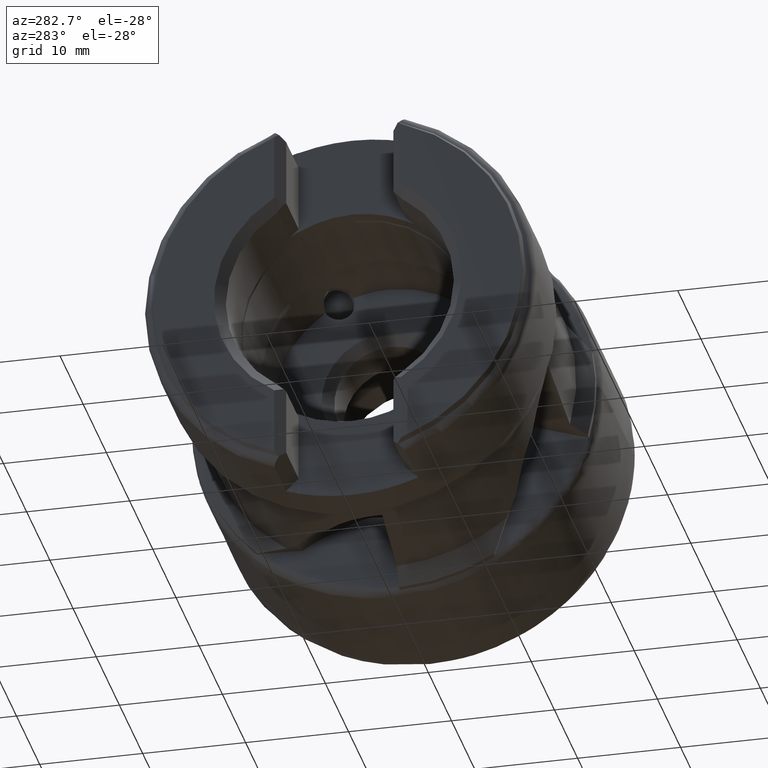
[diagram: clean part render]
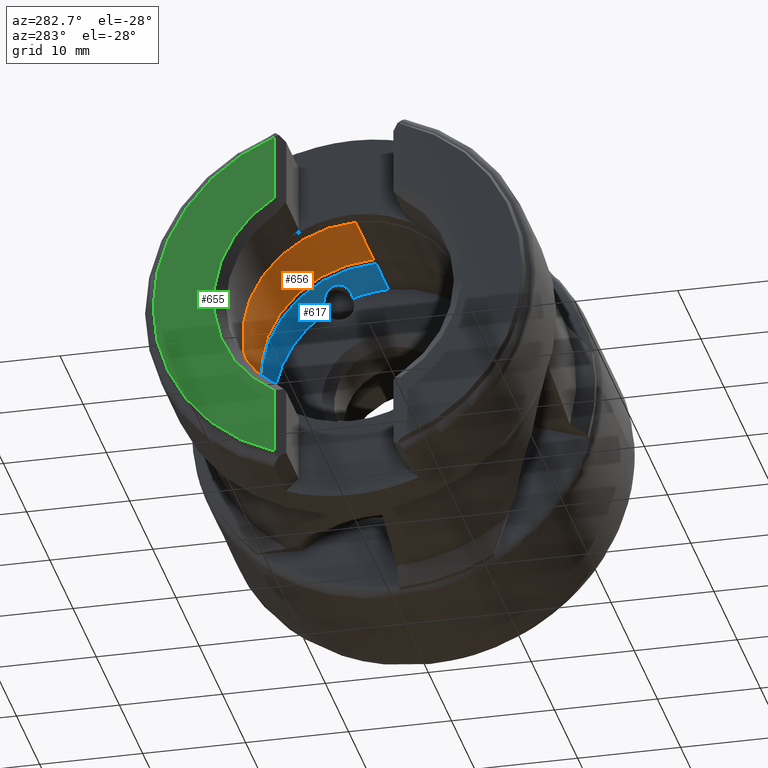
[diagram: same view with three faces highlighted in distinct colors, each labeled with its STEP entity id]
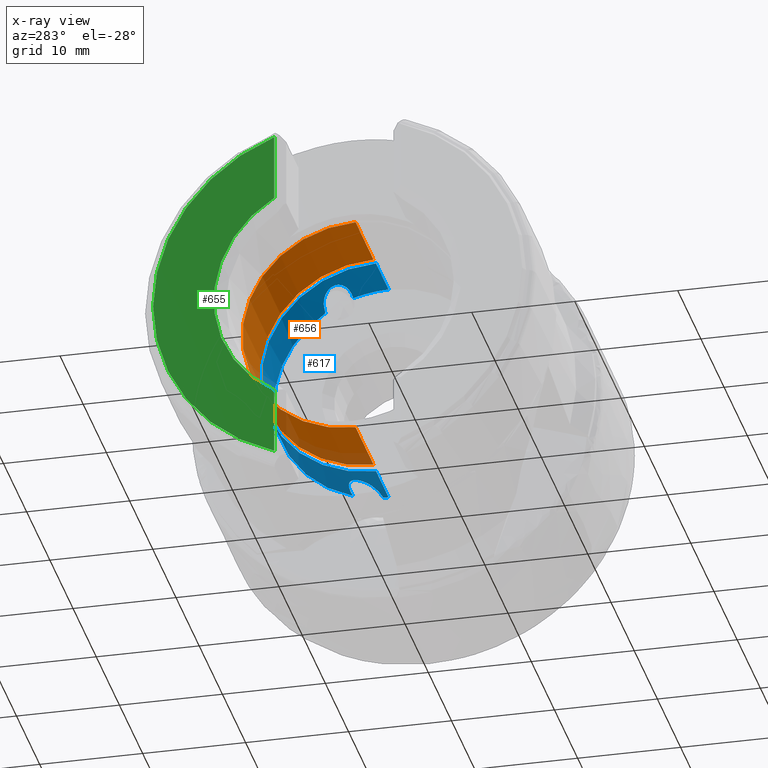
[diagram: x-ray of the same camera — body ghosted, the three highlighted faces saturated]
A machine part, auxiliary view with three faces highlighted in distinct colors.
The next image is the same camera in x-ray (body ghosted, the three faces saturated) — at least one of them is partly hidden behind the body in this view.
Their STEP definitions:

[orange] entity #656 — the highlighted cylindrical surface (partial cylindrical patch) has radius 11 mm, axis along (-1, -0, -0).
#65 = VERTEX_POINT ( 'NONE', #5427 ) ;
#77 = VERTEX_POINT ( 'NONE', #5392 ) ;
#79 = VERTEX_POINT ( 'NONE', #5356 ) ;
#80 = VERTEX_POINT ( 'NONE', #5359 ) ;
#656 = ADVANCED_FACE ( 'NONE', ( #1505 ), #1512, .F. ) ;
#670 = EDGE_CURVE ( 'NONE', #80, #79, #1528, .T. ) ;
#671 = EDGE_CURVE ( 'NONE', #77, #65, #1524, .T. ) ;
#797 = AXIS2_PLACEMENT_3D ( 'NONE', #6711, #6676, #6723 ) ;
#804 = AXIS2_PLACEMENT_3D ( 'NONE', #6736, #6628, #6631 ) ;
#805 = AXIS2_PLACEMENT_3D ( 'NONE', #6589, #6643, #6718 ) ;
#1286 = ORIENTED_EDGE ( 'NONE', *, *, #1650, .T. ) ;
#1290 = ORIENTED_EDGE ( 'NONE', *, *, #1651, .F. ) ;
#1293 = ORIENTED_EDGE ( 'NONE', *, *, #671, .F. ) ;
#1321 = ORIENTED_EDGE ( 'NONE', *, *, #670, .F. ) ;
#1505 = FACE_OUTER_BOUND ( 'NONE', #6064, .T. ) ;
#1512 = CYLINDRICAL_SURFACE ( 'NONE', #797, 11.00000000000000000 ) ;
#1524 = CIRCLE ( 'NONE', #805, 11.00000000000000000 ) ;
#1528 = CIRCLE ( 'NONE', #804, 11.00000000000000000 ) ;
#1650 = EDGE_CURVE ( 'NONE', #77, #79, #1737, .T. ) ;
#1651 = EDGE_CURVE ( 'NONE', #65, #80, #1742, .T. ) ;
#1737 = LINE ( 'NONE', #2761, #1743 ) ;
#1742 = LINE ( 'NONE', #2762, #1744 ) ;
#1743 = VECTOR ( 'NONE', #2779, 1000.000000000000000 ) ;
#1744 = VECTOR ( 'NONE', #2780, 1000.000000000000000 ) ;
#2761 = CARTESIAN_POINT ( 'NONE',  ( -22.15000000000000200, 0.0000000000000000000, 11.00000000000000000 ) ) ;
#2762 = CARTESIAN_POINT ( 'NONE',  ( -22.15000000000000200, 1.347111479062088400E-015, -11.00000000000000000 ) ) ;
#2779 = DIRECTION ( 'NONE',  ( -1.000000000000000000, -0.0000000000000000000, -0.0000000000000000000 ) ) ;
#2780 = DIRECTION ( 'NONE',  ( -1.000000000000000000, -0.0000000000000000000, -0.0000000000000000000 ) ) ;
#5356 = CARTESIAN_POINT ( 'NONE',  ( -31.35000000000000100, 0.0000000000000000000, 11.00000000000000000 ) ) ;
#5359 = CARTESIAN_POINT ( 'NONE',  ( -31.35000000000000100, 1.351703904558891000E-015, -11.00000000000000000 ) ) ;
#5392 = CARTESIAN_POINT ( 'NONE',  ( -23.61634727082116600, 1.356296330055693600E-015, 11.00000000000000000 ) ) ;
#5427 = CARTESIAN_POINT ( 'NONE',  ( -23.61634727082116600, 0.0000000000000000000, -11.00000000000000000 ) ) ;
#6064 = EDGE_LOOP ( 'NONE', ( #1290, #1293, #1286, #1321 ) ) ;
#6589 = CARTESIAN_POINT ( 'NONE',  ( -23.61634727082116600, 0.0000000000000000000, 0.0000000000000000000 ) ) ;
#6628 = DIRECTION ( 'NONE',  ( 1.000000000000000000, -0.0000000000000000000, -0.0000000000000000000 ) ) ;
#6631 = DIRECTION ( 'NONE',  ( 0.0000000000000000000, 0.0000000000000000000, 1.000000000000000000 ) ) ;
#6643 = DIRECTION ( 'NONE',  ( -1.000000000000000000, 0.0000000000000000000, 0.0000000000000000000 ) ) ;
#6676 = DIRECTION ( 'NONE',  ( -1.000000000000000000, -0.0000000000000000000, -0.0000000000000000000 ) ) ;
#6711 = CARTESIAN_POINT ( 'NONE',  ( -22.15000000000000200, 0.0000000000000000000, 0.0000000000000000000 ) ) ;
#6718 = DIRECTION ( 'NONE',  ( 0.0000000000000000000, 0.0000000000000000000, -1.000000000000000000 ) ) ;
#6723 = DIRECTION ( 'NONE',  ( 0.0000000000000000000, 0.0000000000000000000, 1.000000000000000000 ) ) ;
#6736 = CARTESIAN_POINT ( 'NONE',  ( -31.35000000000000100, 0.0000000000000000000, 0.0000000000000000000 ) ) ;

[blue] entity #617 — the highlighted cylindrical surface (partial cylindrical patch) has radius 11.15 mm, axis along (1, -0, -0).
#83 = VERTEX_POINT ( 'NONE', #5352 ) ;
#91 = VERTEX_POINT ( 'NONE', #5358 ) ;
#92 = VERTEX_POINT ( 'NONE', #5398 ) ;
#96 = VERTEX_POINT ( 'NONE', #5340 ) ;
#97 = VERTEX_POINT ( 'NONE', #5365 ) ;
#101 = VERTEX_POINT ( 'NONE', #5343 ) ;
#112 = VERTEX_POINT ( 'NONE', #5381 ) ;
#118 = VERTEX_POINT ( 'NONE', #5411 ) ;
#121 = VERTEX_POINT ( 'NONE', #5333 ) ;
#123 = VERTEX_POINT ( 'NONE', #5399 ) ;
#255 = VERTEX_POINT ( 'NONE', #5795 ) ;
#257 = VERTEX_POINT ( 'NONE', #5863 ) ;
#261 = VERTEX_POINT ( 'NONE', #5791 ) ;
#381 = ORIENTED_EDGE ( 'NONE', *, *, #679, .T. ) ;
#395 = ORIENTED_EDGE ( 'NONE', *, *, #1661, .T. ) ;
#396 = ORIENTED_EDGE ( 'NONE', *, *, #678, .T. ) ;
#397 = ORIENTED_EDGE ( 'NONE', *, *, #677, .T. ) ;
#398 = ORIENTED_EDGE ( 'NONE', *, *, #676, .T. ) ;
#399 = ORIENTED_EDGE ( 'NONE', *, *, #1676, .T. ) ;
#400 = ORIENTED_EDGE ( 'NONE', *, *, #675, .T. ) ;
#401 = ORIENTED_EDGE ( 'NONE', *, *, #674, .T. ) ;
#402 = ORIENTED_EDGE ( 'NONE', *, *, #1635, .T. ) ;
#403 = ORIENTED_EDGE ( 'NONE', *, *, #673, .T. ) ;
#404 = ORIENTED_EDGE ( 'NONE', *, *, #6135, .T. ) ;
#405 = ORIENTED_EDGE ( 'NONE', *, *, #672, .F. ) ;
#406 = ORIENTED_EDGE ( 'NONE', *, *, #6143, .F. ) ;
#617 = ADVANCED_FACE ( 'NONE', ( #1457 ), #1456, .F. ) ;
#672 = EDGE_CURVE ( 'NONE', #118, #112, #1529, .T. ) ;
#673 = EDGE_CURVE ( 'NONE', #123, #101, #1530, .T. ) ;
#674 = EDGE_CURVE ( 'NONE', #97, #255, #5955, .T. ) ;
#675 = EDGE_CURVE ( 'NONE', #255, #96, #1531, .T. ) ;
#676 = EDGE_CURVE ( 'NONE', #92, #257, #5960, .T. ) ;
#677 = EDGE_CURVE ( 'NONE', #257, #261, #1532, .T. ) ;
#678 = EDGE_CURVE ( 'NONE', #261, #83, #5962, .T. ) ;
#679 = EDGE_CURVE ( 'NONE', #91, #121, #1533, .T. ) ;
#754 = AXIS2_PLACEMENT_3D ( 'NONE', #6332, #6352, #6326 ) ;
#806 = AXIS2_PLACEMENT_3D ( 'NONE', #6588, #6737, #6591 ) ;
#807 = AXIS2_PLACEMENT_3D ( 'NONE', #6606, #6603, #6759 ) ;
#808 = AXIS2_PLACEMENT_3D ( 'NONE', #6645, #6741, #6630 ) ;
#809 = AXIS2_PLACEMENT_3D ( 'NONE', #6681, #6674, #6687 ) ;
#810 = AXIS2_PLACEMENT_3D ( 'NONE', #6700, #6693, #6667 ) ;
#1456 = CYLINDRICAL_SURFACE ( 'NONE', #754, 11.14999999999999900 ) ;
#1457 = FACE_OUTER_BOUND ( 'NONE', #6098, .T. ) ;
#1529 = CIRCLE ( 'NONE', #806, 11.14999999999999900 ) ;
#1530 = CIRCLE ( 'NONE', #807, 11.14999999999999900 ) ;
#1531 = CIRCLE ( 'NONE', #808, 11.14999999999999900 ) ;
#1532 = CIRCLE ( 'NONE', #809, 11.14999999999999900 ) ;
#1533 = CIRCLE ( 'NONE', #810, 11.14999999999999900 ) ;
#1635 = EDGE_CURVE ( 'NONE', #101, #97, #5683, .T. ) ;
#1661 = EDGE_CURVE ( 'NONE', #83, #91, #6190, .T. ) ;
#1676 = EDGE_CURVE ( 'NONE', #96, #92, #5967, .T. ) ;
#2052 = LINE ( 'NONE', #4880, #2056 ) ;
#2056 = VECTOR ( 'NONE', #4881, 1000.000000000000000 ) ;
#2062 = LINE ( 'NONE', #4909, #2064 ) ;
#2064 = VECTOR ( 'NONE', #4908, 1000.000000000000000 ) ;
#2667 = CARTESIAN_POINT ( 'NONE',  ( -17.48555824238443900, 0.5201912534317708600, -11.13786835752697300 ) ) ;
#2668 = CARTESIAN_POINT ( 'NONE',  ( -17.14999999999999900, 0.5056979179938314600, -11.13852636643300000 ) ) ;
#2683 = CARTESIAN_POINT ( 'NONE',  ( -17.81745045611878800, 0.5543105602505674600, -11.13635259256527400 ) ) ;
#2684 = CARTESIAN_POINT ( 'NONE',  ( -18.47316713826245000, 0.6656650827218929500, -11.13025153627650400 ) ) ;
#2685 = CARTESIAN_POINT ( 'NONE',  ( -18.79706457708927700, 0.7425147830143330500, -11.12576467504484900 ) ) ;
#2686 = CARTESIAN_POINT ( 'NONE',  ( -19.43362354065945400, 0.9560682739943035000, -11.10945098836716800 ) ) ;
#2687 = CARTESIAN_POINT ( 'NONE',  ( -19.74289624833423300, 1.090498603435603700, -11.09804363385641100 ) ) ;
#2688 = CARTESIAN_POINT ( 'NONE',  ( -20.16560171350078400, 1.362272214463939400, -11.06684369364040600 ) ) ;
#2689 = CARTESIAN_POINT ( 'NONE',  ( -20.30079386133898800, 1.465858368514648500, -11.05388713382799200 ) ) ;
#2690 = CARTESIAN_POINT ( 'NONE',  ( -20.53673609780716400, 1.705566419353249600, -11.01944666093207700 ) ) ;
#2691 = CARTESIAN_POINT ( 'NONE',  ( -20.63819050787660500, 1.841393094812096000, -10.99804825308224700 ) ) ;
#2692 = CARTESIAN_POINT ( 'NONE',  ( -20.69930237472874200, 1.997859805780366300, -10.96955132156494500 ) ) ;
#2846 = CARTESIAN_POINT ( 'NONE',  ( -20.50634299675489900, 4.056619334168007500, 10.38587211444731100 ) ) ;
#2847 = CARTESIAN_POINT ( 'NONE',  ( -20.40445638768442600, 3.958212328905331000, 10.42430892127173300 ) ) ;
#2853 = CARTESIAN_POINT ( 'NONE',  ( -20.28227467673757500, 3.876658423463029000, 10.45462621863004300 ) ) ;
#2854 = CARTESIAN_POINT ( 'NONE',  ( -20.02749020733261900, 3.741244165153859500, 10.50384605752463000 ) ) ;
#2855 = CARTESIAN_POINT ( 'NONE',  ( -19.89244363477693900, 3.685903388007149700, 10.52326233634157900 ) ) ;
#2856 = CARTESIAN_POINT ( 'NONE',  ( -19.47622709275359300, 3.546002716496279300, 10.57157039778632100 ) ) ;
#2857 = CARTESIAN_POINT ( 'NONE',  ( -19.19123640880378900, 3.488579201850137600, 10.59027426869906900 ) ) ;
#2858 = CARTESIAN_POINT ( 'NONE',  ( -18.61321953898776000, 3.412650868379312200, 10.61498506755430100 ) ) ;
#2859 = CARTESIAN_POINT ( 'NONE',  ( -18.31919460985600900, 3.395320143919960300, 10.62046635021584800 ) ) ;
#2860 = CARTESIAN_POINT ( 'NONE',  ( -17.73421588556301700, 3.391334924121733400, 10.62173958484240000 ) ) ;
#2861 = CARTESIAN_POINT ( 'NONE',  ( -17.44199258917797500, 3.404640998786513600, 10.61751839320738900 ) ) ;
#2862 = CARTESIAN_POINT ( 'NONE',  ( -17.14999999999999900, 3.431165824096864100, 10.60893967781712300 ) ) ;
#2958 = CARTESIAN_POINT ( 'NONE',  ( -17.52396771426383600, 10.70088802393178500, -3.132691643625694400 ) ) ;
#2959 = CARTESIAN_POINT ( 'NONE',  ( -17.14999999999999900, 10.69632272214158100, -3.148202697381646200 ) ) ;
#2964 = CARTESIAN_POINT ( 'NONE',  ( -17.89340565476623700, 10.71236701528235000, -3.093912424557710800 ) ) ;
#2965 = CARTESIAN_POINT ( 'NONE',  ( -18.62205476965025500, 10.74921681929663600, -2.963349276189381200 ) ) ;
#2966 = CARTESIAN_POINT ( 'NONE',  ( -18.98307043987621500, 10.77466863207056700, -2.871827497043699700 ) ) ;
#2967 = CARTESIAN_POINT ( 'NONE',  ( -19.50761971454356200, 10.82464617056332300, -2.674720472878271900 ) ) ;
#2968 = CARTESIAN_POINT ( 'NONE',  ( -19.67746992312545700, 10.84307765583210800, -2.599680077189070500 ) ) ;
#2969 = CARTESIAN_POINT ( 'NONE',  ( -20.00335591410426200, 10.88379765865245300, -2.423554843540935500 ) ) ;
#2970 = CARTESIAN_POINT ( 'NONE',  ( -20.16117405156308000, 10.90630633454316500, -2.321687080248946000 ) ) ;
#2971 = CARTESIAN_POINT ( 'NONE',  ( -20.44541228306318800, 10.95505014539853800, -2.079573291157300800 ) ) ;
#2972 = CARTESIAN_POINT ( 'NONE',  ( -20.57300356673777500, 10.98141327688740400, -1.938841361181976600 ) ) ;
#2973 = CARTESIAN_POINT ( 'NONE',  ( -20.70067934773160100, 11.02136777204429000, -1.690846911683828500 ) ) ;
#2974 = CARTESIAN_POINT ( 'NONE',  ( -20.73221155220406300, 11.03483288625898600, -1.601142365670063600 ) ) ;
#2975 = CARTESIAN_POINT ( 'NONE',  ( -20.76000584917084200, 11.06006639567990000, -1.416377430616071500 ) ) ;
#2976 = CARTESIAN_POINT ( 'NONE',  ( -20.75592486822018400, 11.07181833266838200, -1.321259069807207800 ) ) ;
#2977 = CARTESIAN_POINT ( 'NONE',  ( -20.73300731904784300, 11.08192273860083300, -1.230239170113669000 ) ) ;
#4880 = CARTESIAN_POINT ( 'NONE',  ( 0.0000000000000000000, 0.0000000000000000000, -11.14999999999999900 ) ) ;
#4881 = DIRECTION ( 'NONE',  ( 1.000000000000000000, -0.0000000000000000000, -0.0000000000000000000 ) ) ;
#4908 = DIRECTION ( 'NONE',  ( 1.000000000000000000, -0.0000000000000000000, -0.0000000000000000000 ) ) ;
#4909 = CARTESIAN_POINT ( 'NONE',  ( 0.0000000000000000000, 1.365481181049298600E-015, 11.14999999999999900 ) ) ;
#5333 = CARTESIAN_POINT ( 'NONE',  ( -17.14999999999999900, 1.365481181049298600E-015, 11.14999999999999900 ) ) ;
#5340 = CARTESIAN_POINT ( 'NONE',  ( -17.14999999999999900, 10.69632272214158100, -3.148202697381646200 ) ) ;
#5343 = CARTESIAN_POINT ( 'NONE',  ( -17.14999999999999900, 0.5056979179938314600, -11.13852636643300000 ) ) ;
#5352 = CARTESIAN_POINT ( 'NONE',  ( -20.50634299675489900, 4.056619334168007500, 10.38587211444731100 ) ) ;
#5358 = CARTESIAN_POINT ( 'NONE',  ( -17.14999999999999900, 3.431165824096864100, 10.60893967781712300 ) ) ;
#5365 = CARTESIAN_POINT ( 'NONE',  ( -20.69930237472874200, 1.997859805780366300, -10.96955132156494500 ) ) ;
#5381 = CARTESIAN_POINT ( 'NONE',  ( -22.54904181246354600, 1.365481181049298600E-015, 11.14999999999999900 ) ) ;
#5398 = CARTESIAN_POINT ( 'NONE',  ( -20.73300731904784300, 11.08192273860083300, -1.230239170113669000 ) ) ;
#5399 = CARTESIAN_POINT ( 'NONE',  ( -17.14999999999999900, 0.0000000000000000000, -11.14999999999999900 ) ) ;
#5411 = CARTESIAN_POINT ( 'NONE',  ( -22.54904181246354600, 0.0000000000000000000, -11.14999999999999900 ) ) ;
#5683 = B_SPLINE_CURVE_WITH_KNOTS ( 'NONE', 3,
 ( #2668, #2667, #2683, #2684, #2685, #2686, #2687, #2688, #2689, #2690, #2691, #2692 ),
 .UNSPECIFIED., .F., .F.,
 ( 4, 2, 2, 2, 2, 4 ),
 ( 1.789345665383675700E-015, 0.0009975691810379598100, 0.001995138362074130300, 0.002992707543110300900, 0.003491492133628381500, 0.003990276724146462500 ),
 .UNSPECIFIED. ) ;
#5791 = CARTESIAN_POINT ( 'NONE',  ( -17.14999999999999900, 6.137943320776376100, 9.308498901055395800 ) ) ;
#5795 = CARTESIAN_POINT ( 'NONE',  ( -17.14999999999999900, 3.459906822876593700, -10.59960116122292600 ) ) ;
#5863 = CARTESIAN_POINT ( 'NONE',  ( -17.14999999999999900, 11.14855527079869000, -0.1794864171743981700 ) ) ;
#5955 = B_SPLINE_CURVE_WITH_KNOTS ( 'NONE', 3,
 ( #6590, #6629, #6652, #6650, #6705, #6704, #6706, #6615, #6707, #6690, #6750, #6752, #6747, #6684, #6746, #6637, #6608, #6605 ),
 .UNSPECIFIED., .F., .F.,
 ( 4, 2, 2, 2, 2, 2, 2, 2, 4 ),
 ( 0.003990276724146462500, 0.004264322577571186300, 0.004538368430995910100, 0.004812414284420634700, 0.005086460137845358500, 0.005634551844694814800, 0.006182643551544271900, 0.007278826965243185300, 0.008375010378942098600 ),
 .UNSPECIFIED. ) ;
#5960 = B_SPLINE_CURVE_WITH_KNOTS ( 'NONE', 3,
 ( #6641, #6624, #6600, #6604, #6607, #6679, #6699, #6697, #6642, #6696, #6689, #6691, #6651, #6692 ),
 .UNSPECIFIED., .F., .F.,
 ( 4, 2, 2, 2, 2, 2, 4 ),
 ( 0.004447021343314512900, 0.004938019972768067600, 0.005429018602221622300, 0.005920017231675176900, 0.006411015861128731600, 0.007393013120035831500, 0.008375010378942931300 ),
 .UNSPECIFIED. ) ;
#5962 = B_SPLINE_CURVE_WITH_KNOTS ( 'NONE', 3,
 ( #6708, #6677, #6695, #6682, #6673, #6688, #6671, #6678, #6698, #6702, #6611, #6658, #6613, #6665, #6761, #6610, #6656, #6626, #6662, #6666 ),
 .UNSPECIFIED., .F., .F.,
 ( 4, 2, 2, 2, 2, 2, 2, 2, 2, 4 ),
 ( 8.152997335008075200E-016, 0.001223479012554246500, 0.001835218518830962100, 0.002446958025107678000, 0.003058697531384394400, 0.003670437037661109400, 0.003976306790799469100, 0.004282176543937829200, 0.004588046297076189300, 0.004893916050214549400 ),
 .UNSPECIFIED. ) ;
#5967 = B_SPLINE_CURVE_WITH_KNOTS ( 'NONE', 3,
 ( #2959, #2958, #2964, #2965, #2966, #2967, #2968, #2969, #2970, #2971, #2972, #2973, #2974, #2975, #2976, #2977 ),
 .UNSPECIFIED., .F., .F.,
 ( 4, 2, 2, 2, 2, 2, 2, 4 ),
 ( 5.541464110564796000E-016, 0.001111755335829047800, 0.002223510671657541400, 0.002779388339571783300, 0.003335266007486025200, 0.003891143675400267100, 0.004169082509357389800, 0.004447021343314512900 ),
 .UNSPECIFIED. ) ;
#6098 = EDGE_LOOP ( 'NONE', ( #406, #405, #404, #403, #402, #401, #400, #399, #398, #397, #396, #395, #381 ) ) ;
#6135 = EDGE_CURVE ( 'NONE', #118, #123, #2052, .T. ) ;
#6143 = EDGE_CURVE ( 'NONE', #112, #121, #2062, .T. ) ;
#6190 = B_SPLINE_CURVE_WITH_KNOTS ( 'NONE', 3,
 ( #2846, #2847, #2853, #2854, #2855, #2856, #2857, #2858, #2859, #2860, #2861, #2862 ),
 .UNSPECIFIED., .F., .F.,
 ( 4, 2, 2, 2, 2, 4 ),
 ( 0.004893916050214549400, 0.005329052841305966700, 0.005764189632397383900, 0.006634463214580207900, 0.007504736796763032900, 0.008375010378945857800 ),
 .UNSPECIFIED. ) ;
#6326 = DIRECTION ( 'NONE',  ( 0.0000000000000000000, 0.0000000000000000000, -1.000000000000000000 ) ) ;
#6332 = CARTESIAN_POINT ( 'NONE',  ( 0.0000000000000000000, 0.0000000000000000000, 0.0000000000000000000 ) ) ;
#6352 = DIRECTION ( 'NONE',  ( 1.000000000000000000, -0.0000000000000000000, -0.0000000000000000000 ) ) ;
#6588 = CARTESIAN_POINT ( 'NONE',  ( -22.54904181246354600, 0.0000000000000000000, 0.0000000000000000000 ) ) ;
#6590 = CARTESIAN_POINT ( 'NONE',  ( -20.69930237472874200, 1.997859805780366300, -10.96955132156494500 ) ) ;
#6591 = DIRECTION ( 'NONE',  ( 0.0000000000000000000, 0.0000000000000000000, -1.000000000000000000 ) ) ;
#6600 = CARTESIAN_POINT ( 'NONE',  ( -20.59415628188748900, 11.11207858767678400, -0.9259636947778793200 ) ) ;
#6603 = DIRECTION ( 'NONE',  ( 1.000000000000000000, -0.0000000000000000000, -0.0000000000000000000 ) ) ;
#6604 = CARTESIAN_POINT ( 'NONE',  ( -20.35536304150685900, 11.12879930709187800, -0.6967964446113281700 ) ) ;
#6605 = CARTESIAN_POINT ( 'NONE',  ( -17.14999999999999900, 3.459906822876593700, -10.59960116122292600 ) ) ;
#6606 = CARTESIAN_POINT ( 'NONE',  ( -17.14999999999999900, 0.0000000000000000000, 0.0000000000000000000 ) ) ;
#6607 = CARTESIAN_POINT ( 'NONE',  ( -20.21331929151875400, 11.13379096063385600, -0.6055929099219411500 ) ) ;
#6608 = CARTESIAN_POINT ( 'NONE',  ( -17.51778943970418800, 3.493287681420520500, -10.58870502857925900 ) ) ;
#6610 = CARTESIAN_POINT ( 'NONE',  ( -20.75322165389523800, 4.473194280128046400, 10.21390281541888900 ) ) ;
#6611 = CARTESIAN_POINT ( 'NONE',  ( -20.41222816434999400, 5.228356071250837000, 9.849551749296480800 ) ) ;
#6613 = CARTESIAN_POINT ( 'NONE',  ( -20.65503380074251200, 4.930872053790147400, 10.00092096198565800 ) ) ;
#6615 = CARTESIAN_POINT ( 'NONE',  ( -20.50223695880751500, 2.832436825341265500, -10.78447499546483700 ) ) ;
#6624 = CARTESIAN_POINT ( 'NONE',  ( -20.69252184577324600, 11.09977288711600900, -1.069446072703569700 ) ) ;
#6626 = CARTESIAN_POINT ( 'NONE',  ( -20.64072454436304200, 4.205073493279157600, 10.32708471799775700 ) ) ;
#6629 = CARTESIAN_POINT ( 'NONE',  ( -20.73287890059631200, 2.083826882861316700, -10.95389433041866100 ) ) ;
#6630 = DIRECTION ( 'NONE',  ( 0.0000000000000000000, 0.0000000000000000000, -1.000000000000000000 ) ) ;
#6637 = CARTESIAN_POINT ( 'NONE',  ( -17.88594029356586600, 3.505911236465785400, -10.58448268339776300 ) ) ;
#6641 = CARTESIAN_POINT ( 'NONE',  ( -20.73300731904784300, 11.08192273860083300, -1.230239170113669000 ) ) ;
#6642 = CARTESIAN_POINT ( 'NONE',  ( -19.28566828062580600, 11.14689980745103300, -0.2645459943947938700 ) ) ;
#6645 = CARTESIAN_POINT ( 'NONE',  ( -17.14999999999999900, 0.0000000000000000000, 0.0000000000000000000 ) ) ;
#6650 = CARTESIAN_POINT ( 'NONE',  ( -20.75563322015055000, 2.356615292515395100, -10.89851235622746400 ) ) ;
#6651 = CARTESIAN_POINT ( 'NONE',  ( -17.47947791138866000, 11.14906163922213800, -0.1480340295965119600 ) ) ;
#6652 = CARTESIAN_POINT ( 'NONE',  ( -20.75265519005015600, 2.173882377526140000, -10.93642732451697700 ) ) ;
#6656 = CARTESIAN_POINT ( 'NONE',  ( -20.72854004327383100, 4.378449834633437700, 10.25477932001368100 ) ) ;
#6658 = CARTESIAN_POINT ( 'NONE',  ( -20.60139005773509500, 5.009476738116432200, 9.961644544337751500 ) ) ;
#6662 = CARTESIAN_POINT ( 'NONE',  ( -20.57796192809446400, 4.125792355211068200, 10.35885381386803200 ) ) ;
#6665 = CARTESIAN_POINT ( 'NONE',  ( -20.73308376555941000, 4.756035864855987500, 10.08523882468513100 ) ) ;
#6666 = CARTESIAN_POINT ( 'NONE',  ( -20.50634299675489900, 4.056619334168007500, 10.38587211444731100 ) ) ;
#6667 = DIRECTION ( 'NONE',  ( 0.0000000000000000000, 0.0000000000000000000, -1.000000000000000000 ) ) ;
#6671 = CARTESIAN_POINT ( 'NONE',  ( -19.35341091555754300, 5.778262416387215200, 9.536308642010716600 ) ) ;
#6673 = CARTESIAN_POINT ( 'NONE',  ( -18.76556089893755800, 5.940237082483764500, 9.436082720685522700 ) ) ;
#6674 = DIRECTION ( 'NONE',  ( 1.000000000000000000, -0.0000000000000000000, -0.0000000000000000000 ) ) ;
#6677 = CARTESIAN_POINT ( 'NONE',  ( -17.56154886783930600, 6.123088283076944200, 9.318294183881334900 ) ) ;
#6678 = CARTESIAN_POINT ( 'NONE',  ( -19.72869678399895900, 5.634514661239530000, 9.621940739819489600 ) ) ;
#6679 = CARTESIAN_POINT ( 'NONE',  ( -19.91859892253988900, 11.14088572940224100, -0.4568469021907793400 ) ) ;
#6681 = CARTESIAN_POINT ( 'NONE',  ( -17.14999999999999900, 0.0000000000000000000, 0.0000000000000000000 ) ) ;
#6682 = CARTESIAN_POINT ( 'NONE',  ( -18.56728757469293400, 5.981670879352215300, 9.409768927238932400 ) ) ;
#6684 = CARTESIAN_POINT ( 'NONE',  ( -18.99096116796445000, 3.441990300509334000, -10.60575835321316700 ) ) ;
#6687 = DIRECTION ( 'NONE',  ( 0.0000000000000000000, 0.0000000000000000000, -1.000000000000000000 ) ) ;
#6688 = CARTESIAN_POINT ( 'NONE',  ( -19.15811514968829200, 5.838715763154312700, 9.499235334742921900 ) ) ;
#6689 = CARTESIAN_POINT ( 'NONE',  ( -18.46948423906107500, 11.14901289505235800, -0.1485357369674771800 ) ) ;
#6690 = CARTESIAN_POINT ( 'NONE',  ( -20.21219353420232400, 3.057826751954757500, -10.72311276590509400 ) ) ;
#6691 = CARTESIAN_POINT ( 'NONE',  ( -17.80924789564226500, 11.14919468979486600, -0.1341982423514893600 ) ) ;
#6692 = CARTESIAN_POINT ( 'NONE',  ( -17.14999999999999900, 11.14855527079869000, -0.1794864171743981700 ) ) ;
#6693 = DIRECTION ( 'NONE',  ( 1.000000000000000000, -0.0000000000000000000, -0.0000000000000000000 ) ) ;
#6695 = CARTESIAN_POINT ( 'NONE',  ( -17.96764396112820000, 6.083892622457212500, 9.344265709519257600 ) ) ;
#6696 = CARTESIAN_POINT ( 'NONE',  ( -18.80050646707164200, 11.14875573216575000, -0.1765933931663134500 ) ) ;
#6697 = CARTESIAN_POINT ( 'NONE',  ( -19.44587081984359100, 11.14602385596275300, -0.3015931883750202500 ) ) ;
#6698 = CARTESIAN_POINT ( 'NONE',  ( -19.90972707857514800, 5.551424639295915700, 9.670453944251693900 ) ) ;
#6699 = CARTESIAN_POINT ( 'NONE',  ( -19.76197115996872400, 11.14301243860595000, -0.3975928093389081200 ) ) ;
#6700 = CARTESIAN_POINT ( 'NONE',  ( -17.14999999999999900, 0.0000000000000000000, 0.0000000000000000000 ) ) ;
#6702 = CARTESIAN_POINT ( 'NONE',  ( -20.25079272470651400, 5.348735132336030600, 9.784018984946273500 ) ) ;
#6704 = CARTESIAN_POINT ( 'NONE',  ( -20.67066146017008400, 2.616077686429785700, -10.83910423615833300 ) ) ;
#6705 = CARTESIAN_POINT ( 'NONE',  ( -20.73845870599316400, 2.446911749586200300, -10.87854153797641200 ) ) ;
#6706 = CARTESIAN_POINT ( 'NONE',  ( -20.62058356567877500, 2.694073373597527100, -10.81986912836880600 ) ) ;
#6707 = CARTESIAN_POINT ( 'NONE',  ( -20.43432715671411500, 2.893192611241474300, -10.76824844034903900 ) ) ;
#6708 = CARTESIAN_POINT ( 'NONE',  ( -17.14999999999999900, 6.137943320776376100, 9.308498901055395800 ) ) ;
#6737 = DIRECTION ( 'NONE',  ( 1.000000000000000000, -0.0000000000000000000, -0.0000000000000000000 ) ) ;
#6741 = DIRECTION ( 'NONE',  ( 1.000000000000000000, -0.0000000000000000000, -0.0000000000000000000 ) ) ;
#6746 = CARTESIAN_POINT ( 'NONE',  ( -18.62313695495006600, 3.479919316734681400, -10.59305663263163100 ) ) ;
#6747 = CARTESIAN_POINT ( 'NONE',  ( -19.52734224081075400, 3.323128309990536900, -10.64335685318439500 ) ) ;
#6750 = CARTESIAN_POINT ( 'NONE',  ( -20.04837534104735800, 3.139117783151963000, -10.69921944402297600 ) ) ;
#6752 = CARTESIAN_POINT ( 'NONE',  ( -19.70518290180446300, 3.272618818871041200, -10.65914270634516600 ) ) ;
#6759 = DIRECTION ( 'NONE',  ( 0.0000000000000000000, 0.0000000000000000000, -1.000000000000000000 ) ) ;
#6761 = CARTESIAN_POINT ( 'NONE',  ( -20.75518559476258000, 4.662602806652848200, 10.12884064727968400 ) ) ;

[green] entity #655 — the highlighted planar face has unit normal (1, 0, -0).
#226 = VERTEX_POINT ( 'NONE', #5806 ) ;
#233 = VERTEX_POINT ( 'NONE', #5823 ) ;
#240 = VERTEX_POINT ( 'NONE', #5827 ) ;
#249 = VERTEX_POINT ( 'NONE', #5858 ) ;
#655 = ADVANCED_FACE ( 'NONE', ( #1506 ), #6724, .F. ) ;
#702 = EDGE_CURVE ( 'NONE', #233, #240, #1563, .T. ) ;
#795 = AXIS2_PLACEMENT_3D ( 'NONE', #6685, #6722, #6712 ) ;
#896 = AXIS2_PLACEMENT_3D ( 'NONE', #4148, #4149, #4150 ) ;
#1005 = AXIS2_PLACEMENT_3D ( 'NONE', #5285, #5286, #5287 ) ;
#1317 = ORIENTED_EDGE ( 'NONE', *, *, #702, .F. ) ;
#1322 = ORIENTED_EDGE ( 'NONE', *, *, #6582, .T. ) ;
#1323 = ORIENTED_EDGE ( 'NONE', *, *, #1680, .F. ) ;
#1324 = ORIENTED_EDGE ( 'NONE', *, *, #5631, .F. ) ;
#1506 = FACE_OUTER_BOUND ( 'NONE', #5705, .T. ) ;
#1563 = LINE ( 'NONE', #6225, #1566 ) ;
#1566 = VECTOR ( 'NONE', #6265, 1000.000000000000000 ) ;
#1680 = EDGE_CURVE ( 'NONE', #249, #226, #1758, .T. ) ;
#1758 = LINE ( 'NONE', #2978, #1767 ) ;
#1767 = VECTOR ( 'NONE', #3009, 1000.000000000000000 ) ;
#1898 = CIRCLE ( 'NONE', #896, 12.02500000000001300 ) ;
#2123 = CIRCLE ( 'NONE', #1005, 17.92228756555321600 ) ;
#2978 = CARTESIAN_POINT ( 'NONE',  ( -39.10000000000000900, 6.150000000000018100, -25.00000000000000000 ) ) ;
#3009 = DIRECTION ( 'NONE',  ( 0.0000000000000000000, 0.0000000000000000000, -1.000000000000000000 ) ) ;
#4148 = CARTESIAN_POINT ( 'NONE',  ( -39.10000000000000900, 0.0000000000000000000, 0.0000000000000000000 ) ) ;
#4149 = DIRECTION ( 'NONE',  ( -1.000000000000000000, 0.0000000000000000000, 0.0000000000000000000 ) ) ;
#4150 = DIRECTION ( 'NONE',  ( 0.0000000000000000000, 0.0000000000000000000, -1.000000000000000000 ) ) ;
#5285 = CARTESIAN_POINT ( 'NONE',  ( -39.10000000000000900, 0.0000000000000000000, 0.0000000000000000000 ) ) ;
#5286 = DIRECTION ( 'NONE',  ( -1.000000000000000000, 0.0000000000000000000, 0.0000000000000000000 ) ) ;
#5287 = DIRECTION ( 'NONE',  ( 0.0000000000000000000, -8.881784197001252300E-016, -1.000000000000000000 ) ) ;
#5631 = EDGE_CURVE ( 'NONE', #240, #249, #1898, .T. ) ;
#5705 = EDGE_LOOP ( 'NONE', ( #1322, #1323, #1324, #1317 ) ) ;
#5806 = CARTESIAN_POINT ( 'NONE',  ( -39.10000000000000100, 6.150000000000010100, -16.83406937084386700 ) ) ;
#5823 = CARTESIAN_POINT ( 'NONE',  ( -39.10000000000000900, 6.150000000000017200, 16.83406937084385600 ) ) ;
#5827 = CARTESIAN_POINT ( 'NONE',  ( -39.10000000000000900, 6.150000000000017200, 10.33335013439494800 ) ) ;
#5858 = CARTESIAN_POINT ( 'NONE',  ( -39.10000000000000900, 6.150000000000018100, -10.33335013439495000 ) ) ;
#6225 = CARTESIAN_POINT ( 'NONE',  ( -39.10000000000000900, 6.150000000000018100, -25.00000000000000000 ) ) ;
#6265 = DIRECTION ( 'NONE',  ( 0.0000000000000000000, 0.0000000000000000000, -1.000000000000000000 ) ) ;
#6582 = EDGE_CURVE ( 'NONE', #233, #226, #2123, .T. ) ;
#6685 = CARTESIAN_POINT ( 'NONE',  ( -39.10000000000000900, -6.445542284562542500E-015, 0.0000000000000000000 ) ) ;
#6712 = DIRECTION ( 'NONE',  ( -0.0000000000000000000, 0.0000000000000000000, -1.000000000000000000 ) ) ;
#6722 = DIRECTION ( 'NONE',  ( 1.000000000000000000, 0.0000000000000000000, -0.0000000000000000000 ) ) ;
#6724 = PLANE ( 'NONE',  #795 ) ;